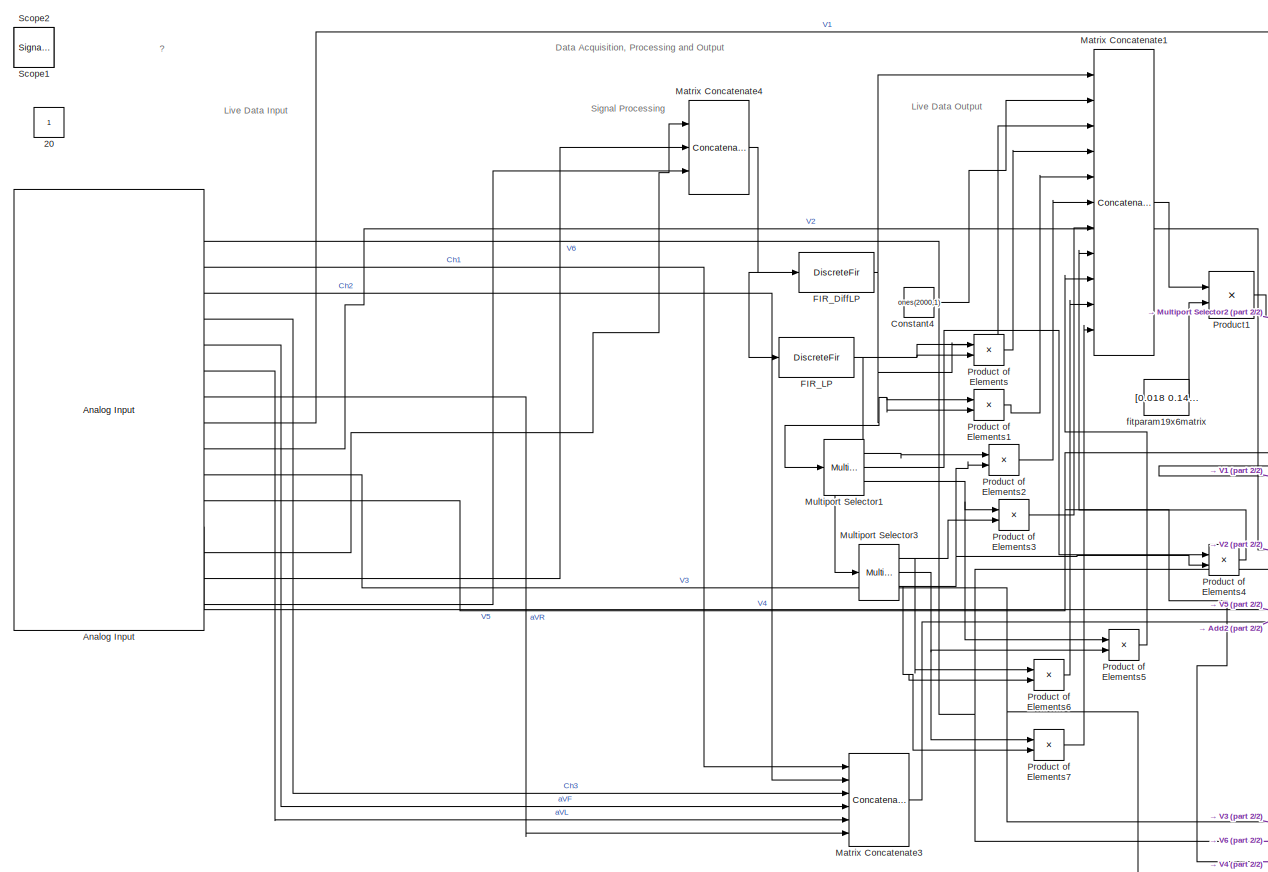
[diagram: root canvas - part 1/2, left side, full height]
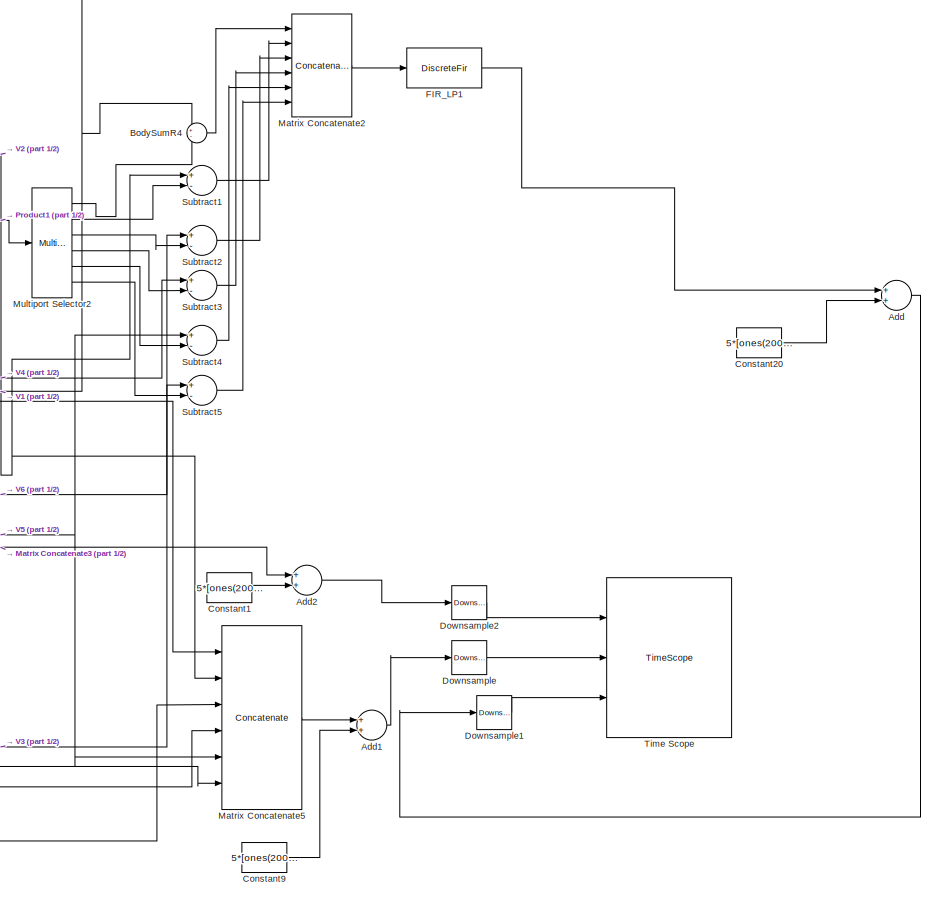
[diagram: root canvas - part 2/2, right side, full height]
MODEL slx_1097ed5887da
KIND model
BLOCK [Constant] 20
  IOType = siggen
BLOCK [Sum] Add
  InputSameDT = off
  OutDataTypeStr = Inherit: Inherit via internal rule
  Ports = [2, 1]
  SaturateOnIntegerOverflow = off
BLOCK [Sum] Add1
  InputSameDT = off
  OutDataTypeStr = Inherit: Inherit via internal rule
  Ports = [2, 1]
  SaturateOnIntegerOverflow = off
BLOCK [Sum] Add2
  InputSameDT = off
  OutDataTypeStr = Inherit: Inherit via internal rule
  Ports = [2, 1]
  SaturateOnIntegerOverflow = off
BLOCK [Reference] Analog Input  REF=daqlib/Analog Input
  AcqMode = 0
  ActualRate = 48076.9231
  Channels = 1$0$TTL$1$#1$1$V6$1$#1$2$Ch1$1$#1$3$Ch2$1$#1$4$Ch3$1$#1$5$aVF$1$#1$6$aVL$1$#1$7$aVR$1$#1$8$V1$1$#1$9$V2$1$#1$10$V3$1$#1$11$V4$1$#1$12$V5$1$#1$13$Gx$1$#1$14$Gy$1$#1$15$Gz$1$#
  DataType = double
  Device = nidaq Dev3 (PCI-6251)
  DeviceMenu = nidaq Dev3 (PCI-6251)
  InputType = SingleEnded
  NChannelsSelected = 16
  NPorts = 1 per hardware channel
  ObjConstructor = analoginput('nidaq','Dev3')
  Ports = [0, 16]
  SampleRate = 48000
  SamplesPerFrame = 2000
  SignalType = Frame-based
  SourceBlock = daqlib/Analog Input
  SourceType = Analog Input
BLOCK [Sum] BodySumR4
  IconShape = round
  Inputs = +-
  Ports = [2, 1]
BLOCK [Constant] Constant1
  SamplingMode = Frame based
  Value = 5*[ones(2000,1)*5 ones(2000,1)*4 ones(2000,1)*3 ones(2000,1)*2 ones(2000,1)*1 ones(2000,1)*0]
  VectorParams1D = off
BLOCK [Constant] Constant20
  SamplingMode = Frame based
  Value = 5*[ones(2000,1)*5 ones(2000,1)*4 ones(2000,1)*3 ones(2000,1)*2 ones(2000,1)*1 ones(2000,1)*0]
  VectorParams1D = off
BLOCK [Constant] Constant4
  Value = ones(2000,1)
BLOCK [Constant] Constant9
  SamplingMode = Frame based
  Value = 5*[ones(2000,1)*5 ones(2000,1)*4 ones(2000,1)*3 ones(2000,1)*2 ones(2000,1)*1 ones(2000,1)*0]
  VectorParams1D = off
BLOCK [Reference] Downsample  REF=dspsigops/Downsample
  InputProcessing = Columns as channels (frame based)
  N = 20
  Ports = [1, 1]
  RateOptions = Enforce single-rate processing
  SourceBlock = dspsigops/Downsample
  SourceType = Downsample
  UserDataPersistent = on
  fmode = Maintain input frame size
  ic = 0
  phase = 0
  smode = Allow multirate
BLOCK [Reference] Downsample1  REF=dspsigops/Downsample
  InputProcessing = Columns as channels (frame based)
  N = 20
  Ports = [1, 1]
  RateOptions = Enforce single-rate processing
  SourceBlock = dspsigops/Downsample
  SourceType = Downsample
  UserDataPersistent = on
  fmode = Maintain input frame size
  ic = 0
  phase = 0
  smode = Allow multirate
BLOCK [Reference] Downsample2  REF=dspsigops/Downsample
  InputProcessing = Columns as channels (frame based)
  N = 20
  Ports = [1, 1]
  RateOptions = Enforce single-rate processing
  SourceBlock = dspsigops/Downsample
  SourceType = Downsample
  UserDataPersistent = on
  fmode = Maintain input frame size
  ic = 0
  phase = 0
  smode = Allow multirate
BLOCK [DiscreteFir] FIR_DiffLP
  Coefficients = [-0.18062676936828148 0.075498218012372678 0.060163267428857255 0.047127582079132126 0.036106819784294142 0.02681014925394444 0.019028739148422402 0.012533880333517169 0.0071669984796646352 0.0027552314840064152 -0.00081448231664470183 -0.0036806791908466363 -0.0059307473989848453 -0.0076730993176787332 -0.0089619539864591313 -0.0098834705132522516 -0.010476162627155713 -0.010815439651932726 -0.01...<+10162ch>
  InputProcessing = Columns as channels (frame based)
  Ports = [1, 1]
  Tag = BlockMethodSubSystem
BLOCK [DiscreteFir] FIR_LP
  Coefficients = [-0.016046831360515792 -0.00065949202963794772 -0.00067039658894896444 -0.000680113961541811 -0.00068755840268027585 -0.00069373348662863862 -0.00069825998158766847 -0.00070062225893785003 -0.00070116943134638197 -0.00069998300862922705 -0.00069683650818794934 -0.00069174377031850157 -0.00068465891805698231 -0.0006754671176039586 -0.00066426308006034725 -0.00065111557687173513 -0.00063595716866335...<+10179ch>
  InputProcessing = Columns as channels (frame based)
  Ports = [1, 1]
  Tag = BlockMethodSubSystem
BLOCK [DiscreteFir] FIR_LP1
  Coefficients = [-0.016046831360515792 -0.00065949202963794772 -0.00067039658894896444 -0.000680113961541811 -0.00068755840268027585 -0.00069373348662863862 -0.00069825998158766847 -0.00070062225893785003 -0.00070116943134638197 -0.00069998300862922705 -0.00069683650818794934 -0.00069174377031850157 -0.00068465891805698231 -0.0006754671176039586 -0.00066426308006034725 -0.00065111557687173513 -0.00063595716866335...<+10179ch>
  InputProcessing = Columns as channels (frame based)
  Ports = [1, 1]
  Tag = BlockMethodSubSystem
BLOCK [Concatenate] Matrix Concatenate1
  ConcatenateDimension = 2
  Mode = Multidimensional array
  NumInputs = 11
  Ports = [11, 1]
BLOCK [Concatenate] Matrix Concatenate2
  ConcatenateDimension = 2
  Mode = Multidimensional array
  NumInputs = 6
  Ports = [6, 1]
BLOCK [Concatenate] Matrix Concatenate3
  ConcatenateDimension = 2
  Mode = Multidimensional array
  NumInputs = 6
  Ports = [6, 1]
BLOCK [Concatenate] Matrix Concatenate4
  ConcatenateDimension = 2
  Mode = Multidimensional array
  NumInputs = 3
  Ports = [3, 1]
BLOCK [Concatenate] Matrix Concatenate5
  ConcatenateDimension = 2
  Mode = Multidimensional array
  NumInputs = 6
  Ports = [6, 1]
BLOCK [Reference] Multiport Selector1  REF=dspindex/Multiport
Selector
  Ports = [1, 3]
  SourceBlock = dspindex/Multiport\nSelector
  SourceType = Multiport Selector
  idxCellArray = {1,2,3}
  idxErrMode = Clip Index
  rowsOrCols = Columns
BLOCK [Reference] Multiport Selector2  REF=dspindex/Multiport
Selector
  Ports = [1, 6]
  SourceBlock = dspindex/Multiport\nSelector
  SourceType = Multiport Selector
  idxCellArray = {1,2,3,4,5,6}
  idxErrMode = Clip Index
  rowsOrCols = Columns
BLOCK [Reference] Multiport Selector3  REF=dspindex/Multiport
Selector
  Ports = [1, 3]
  SourceBlock = dspindex/Multiport\nSelector
  SourceType = Multiport Selector
  idxCellArray = {1,2,3}
  idxErrMode = Clip Index
  rowsOrCols = Columns
BLOCK [Product] Product of Elements
  InputSameDT = off
  OutDataTypeStr = Inherit: Inherit via internal rule
  Ports = [2, 1]
  RndMeth = Floor
  SaturateOnIntegerOverflow = off
BLOCK [Product] Product of Elements1
  InputSameDT = off
  OutDataTypeStr = Inherit: Inherit via internal rule
  Ports = [2, 1]
  RndMeth = Floor
  SaturateOnIntegerOverflow = off
BLOCK [Product] Product of Elements2
  InputSameDT = off
  OutDataTypeStr = Inherit: Inherit via internal rule
  Ports = [2, 1]
  RndMeth = Floor
  SaturateOnIntegerOverflow = off
BLOCK [Product] Product of Elements3
  InputSameDT = off
  OutDataTypeStr = Inherit: Inherit via internal rule
  Ports = [2, 1]
  RndMeth = Floor
  SaturateOnIntegerOverflow = off
BLOCK [Product] Product of Elements4
  InputSameDT = off
  OutDataTypeStr = Inherit: Inherit via internal rule
  Ports = [2, 1]
  RndMeth = Floor
  SaturateOnIntegerOverflow = off
BLOCK [Product] Product of Elements5
  InputSameDT = off
  OutDataTypeStr = Inherit: Inherit via internal rule
  Ports = [2, 1]
  RndMeth = Floor
  SaturateOnIntegerOverflow = off
BLOCK [Product] Product of Elements6
  InputSameDT = off
  OutDataTypeStr = Inherit: Inherit via internal rule
  Ports = [2, 1]
  RndMeth = Floor
  SaturateOnIntegerOverflow = off
BLOCK [Product] Product of Elements7
  InputSameDT = off
  OutDataTypeStr = Inherit: Inherit via internal rule
  Ports = [2, 1]
  RndMeth = Floor
  SaturateOnIntegerOverflow = off
BLOCK [Product] Product1
  InputSameDT = off
  Multiplication = Matrix(*)
  OutDataTypeStr = Inherit: Inherit via internal rule
  Ports = [2, 1]
  RndMeth = Floor
  SaturateOnIntegerOverflow = off
BLOCK [SignalViewerScope] Scope1
  IOType = viewer
  MaxDataPoints = 7500
  NumInputPorts = 3
  Ports = []
  RefreshTime = 0.035000
  ShowDataMarkers = off
  ShowLegends = off
  YMax = 5~5~5
  YMin = -5~-5~-5
BLOCK [SignalViewerScope] Scope2
  IOType = viewer
  MaxDataPoints = 7500
  NumInputPorts = 1
  Ports = []
  RefreshTime = 0.035000
  SaveName = ScopeData1
  ShowDataMarkers = off
  ShowLegends = off
BLOCK [Sum] Subtract1
  InputSameDT = off
  Inputs = +-
  OutDataTypeStr = Inherit: Inherit via internal rule
  Ports = [2, 1]
  SaturateOnIntegerOverflow = off
BLOCK [Sum] Subtract2
  InputSameDT = off
  Inputs = +-
  OutDataTypeStr = Inherit: Inherit via internal rule
  Ports = [2, 1]
  SaturateOnIntegerOverflow = off
BLOCK [Sum] Subtract3
  InputSameDT = off
  Inputs = +-
  OutDataTypeStr = Inherit: Inherit via internal rule
  Ports = [2, 1]
  SaturateOnIntegerOverflow = off
BLOCK [Sum] Subtract4
  InputSameDT = off
  Inputs = +-
  OutDataTypeStr = Inherit: Inherit via internal rule
  Ports = [2, 1]
  SaturateOnIntegerOverflow = off
BLOCK [Sum] Subtract5
  InputSameDT = off
  Inputs = +-
  OutDataTypeStr = Inherit: Inherit via internal rule
  Ports = [2, 1]
  SaturateOnIntegerOverflow = off
BLOCK [TimeScope] Time Scope
  DefaultConfigurationName = spbscopes.TimeScopeBlockCfg
  NumInputPorts = 3
  Ports = [3]
  UserDataPersistent = on
BLOCK [Constant] fitparam19x6matrix
  Value = [0.018 0.143 0.006 -0.593 -0.852 0.140 -1.689 -0.045 0.038 0.008 -0.012 -0.068 0.201 -0.010 0.023 0.011 0.027 -0.032 0.038 ;0.020 0.150 0.006 -0.619 -0.887 0.140 -1.746 -0.046 0.040 0.007 -0.009 -0.068 0.210 -0.010 0.023 0.013 0.028 -0.030 0.040 ;0.019 0.262 -0.004 -0.334 -0.462 0.255 -0.843 -0.011 0.063 -0.008 0.015 -0.125 0.166 0.011 0.005 0.020 0.052 0.057 0.070 ;0.007 0.070 0.001 -0.249 -0.378...<+335ch>
  VectorParams1D = off
ANNOTATION (root): ?
ANNOTATION (root): Data Acquisition, Processing and Output
ANNOTATION (root): Live Data Input
ANNOTATION (root): Live Data Output
ANNOTATION (root): Signal Processing
LINE Add1:1 -> Downsample:1
LINE Add2:1 -> Downsample2:1
LINE Add:1 -> Downsample1:1
NET Analog Input:10 -> Matrix Concatenate5:2, Subtract1:1
NET Analog Input:11 -> Matrix Concatenate5:3, Subtract2:1
NET Analog Input:12 -> Matrix Concatenate5:4, Subtract3:1
NET Analog Input:13 -> Matrix Concatenate5:5, Subtract4:1
LINE Analog Input:14 -> Matrix Concatenate4:1
LINE Analog Input:15 -> Matrix Concatenate4:2
LINE Analog Input:16 -> Matrix Concatenate4:3
NET Analog Input:2 -> Matrix Concatenate5:6, Subtract5:1
LINE Analog Input:3 -> Matrix Concatenate3:1
LINE Analog Input:4 -> Matrix Concatenate3:2
LINE Analog Input:5 -> Matrix Concatenate3:3
LINE Analog Input:6 -> Matrix Concatenate3:4
LINE Analog Input:7 -> Matrix Concatenate3:5
LINE Analog Input:8 -> Matrix Concatenate3:6
NET Analog Input:9 -> BodySumR4:1, Matrix Concatenate5:1
LINE BodySumR4:1 -> Matrix Concatenate2:1
LINE Constant1:1 -> Add2:2
LINE Constant20:1 -> Add:2
LINE Constant4:1 -> Matrix Concatenate1:2
LINE Constant9:1 -> Add1:2
LINE Downsample1:1 -> Time Scope:3
LINE Downsample2:1 -> Time Scope:1
LINE Downsample:1 -> Time Scope:2
NET FIR_DiffLP:1 -> Matrix Concatenate1:1, Multiport Selector1:1, Product of Elements1:1, Product of Elements1:2, Product of Elements:1
LINE FIR_LP1:1 -> Add:1
NET FIR_LP:1 -> Matrix Concatenate1:3, Multiport Selector3:1, Product of Elements:2
LINE Matrix Concatenate1:1 -> Product1:1
LINE Matrix Concatenate2:1 -> FIR_LP1:1
LINE Matrix Concatenate3:1 -> Add2:1
NET Matrix Concatenate4:1 -> FIR_DiffLP:1, FIR_LP:1
LINE Matrix Concatenate5:1 -> Add1:1
LINE Multiport Selector1:1 -> Product of Elements2:1
LINE Multiport Selector1:2 -> Product of Elements4:1
NET Multiport Selector1:3 -> Product of Elements3:1, Product of Elements5:1
LINE Multiport Selector2:1 -> BodySumR4:2
LINE Multiport Selector2:2 -> Subtract1:2
LINE Multiport Selector2:3 -> Subtract2:2
LINE Multiport Selector2:4 -> Subtract3:2
LINE Multiport Selector2:5 -> Subtract4:2
LINE Multiport Selector2:6 -> Subtract5:2
NET Multiport Selector3:1 -> Product of Elements3:2, Product of Elements6:1
NET Multiport Selector3:2 -> Product of Elements5:2, Product of Elements7:1
NET Multiport Selector3:3 -> Product of Elements2:2, Product of Elements4:2, Product of Elements6:2, Product of Elements7:2
LINE Product of Elements1:1 -> Matrix Concatenate1:5
LINE Product of Elements2:1 -> Matrix Concatenate1:6
LINE Product of Elements3:1 -> Matrix Concatenate1:7
LINE Product of Elements4:1 -> Matrix Concatenate1:8
LINE Product of Elements5:1 -> Matrix Concatenate1:9
LINE Product of Elements6:1 -> Matrix Concatenate1:10
LINE Product of Elements7:1 -> Matrix Concatenate1:11
LINE Product of Elements:1 -> Matrix Concatenate1:4
LINE Product1:1 -> Multiport Selector2:1
LINE Subtract1:1 -> Matrix Concatenate2:2
LINE Subtract2:1 -> Matrix Concatenate2:3
LINE Subtract3:1 -> Matrix Concatenate2:4
LINE Subtract4:1 -> Matrix Concatenate2:5
LINE Subtract5:1 -> Matrix Concatenate2:6
LINE fitparam19x6matrix:1 -> Product1:2
note: NET lines group one-source signal fan-out (src -> all destinations, sorted); 1:1 wires keep LINE
